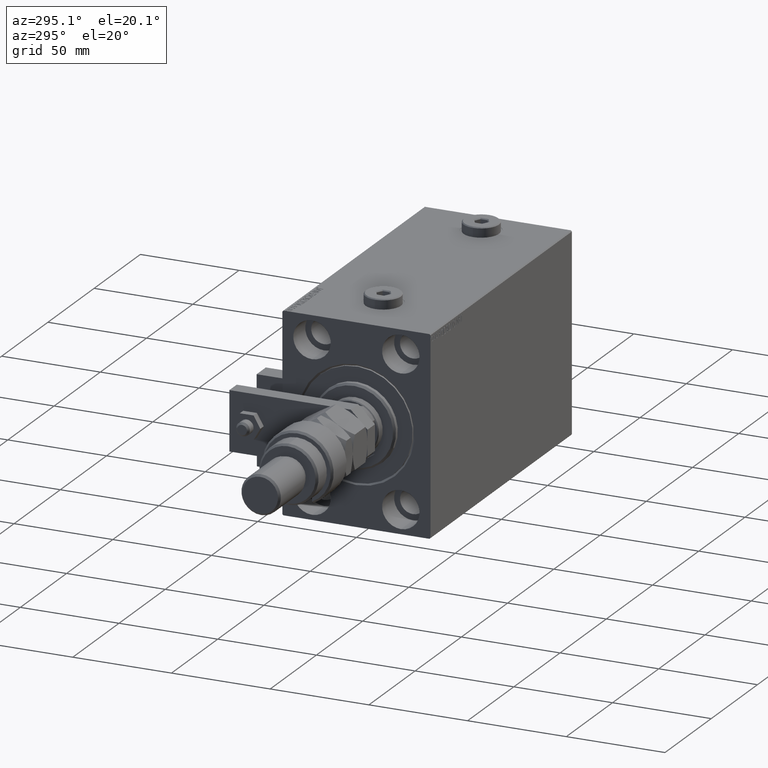
[diagram: clean part render]
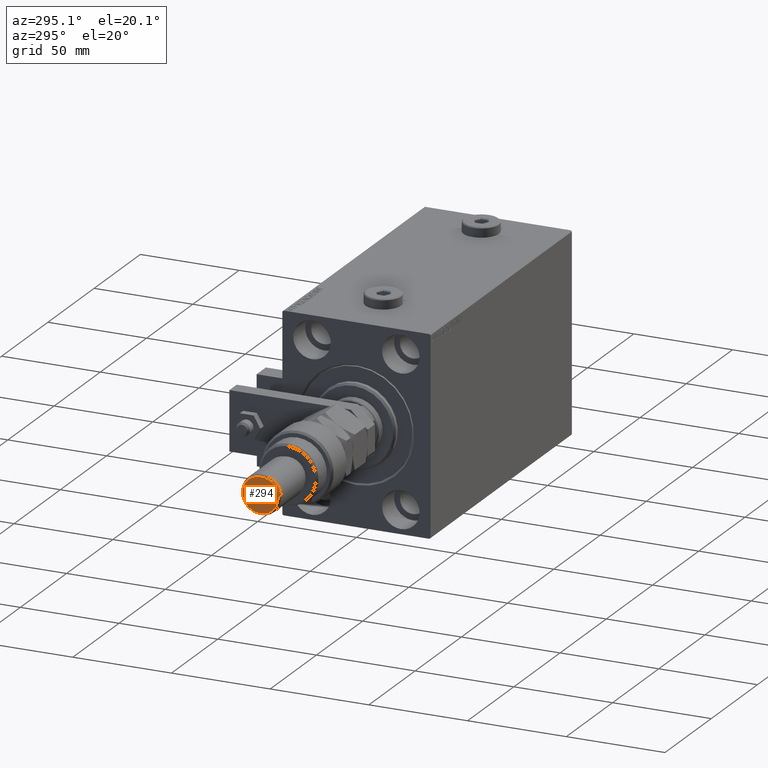
[diagram: same view with one face highlighted and labeled with its STEP entity id]
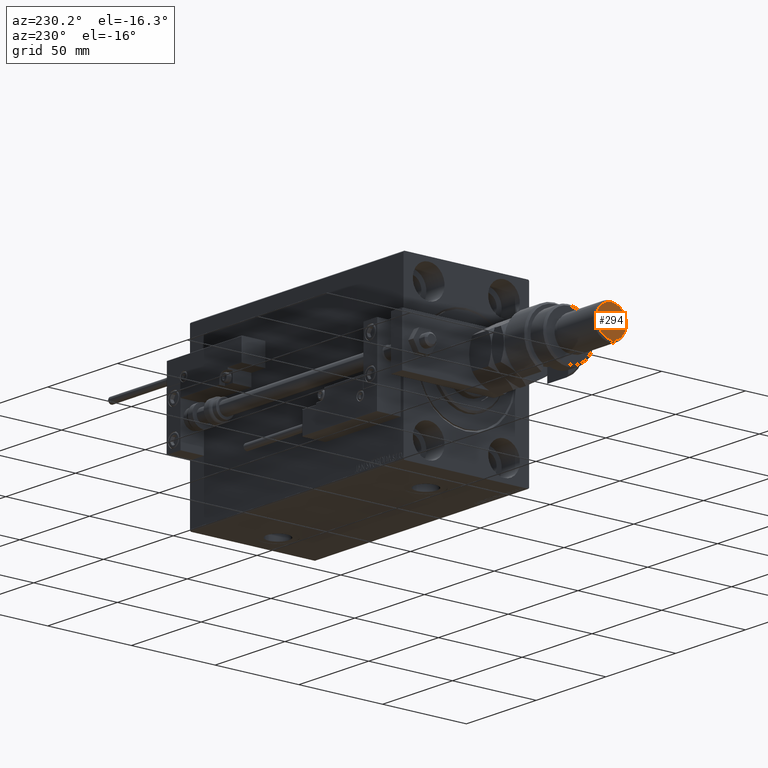
[diagram: same view with one face highlighted and labeled with its STEP entity id]
A machine part, auxiliary view. The second image highlights one B-rep face of the part: STEP entity #294.
A second angle (auxiliary view) of the same face is appended — the face is thin or edge-on in the first view.
In plain terms, the highlighted planar face has unit normal (-1, 0, 0).
Its self-contained STEP definition (entity closure, byte-faithful):
#294 = ADVANCED_FACE ( 'NONE', ( #24070 ), #16616, .T. ) ;
#3103 = DIRECTION ( 'NONE',  ( 0.000000000000000000, 0.000000000000000000, 1.000000000000000000 ) ) ;
#5497 = AXIS2_PLACEMENT_3D ( 'NONE', #18684, #14264, #31078 ) ;
#5583 = CARTESIAN_POINT ( 'NONE',  ( 0.000000000000000000, 0.000000000000000000, 56.00000000000000711 ) ) ;
#8763 = ORIENTED_EDGE ( 'NONE', *, *, #41614, .T. ) ;
#9445 = DIRECTION ( 'NONE',  ( 1.000000000000000000, 0.000000000000000000, 0.000000000000000000 ) ) ;
#14264 = DIRECTION ( 'NONE',  ( 0.000000000000000000, 0.000000000000000000, 1.000000000000000000 ) ) ;
#15333 = VERTEX_POINT ( 'NONE', #41086 ) ;
#16616 = PLANE ( 'NONE',  #19016 ) ;
#16945 = EDGE_CURVE ( 'NONE', #15333, #38847, #30140, .T. ) ;
#18665 = CIRCLE ( 'NONE', #24873, 8.999999999999987566 ) ;
#18684 = CARTESIAN_POINT ( 'NONE',  ( 0.000000000000000000, 0.000000000000000000, 56.00000000000000711 ) ) ;
#19016 = AXIS2_PLACEMENT_3D ( 'NONE', #40848, #3103, #45833 ) ;
#19640 = ORIENTED_EDGE ( 'NONE', *, *, #16945, .T. ) ;
#22408 = DIRECTION ( 'NONE',  ( 0.000000000000000000, 0.000000000000000000, 1.000000000000000000 ) ) ;
#24070 = FACE_OUTER_BOUND ( 'NONE', #25813, .T. ) ;
#24873 = AXIS2_PLACEMENT_3D ( 'NONE', #5583, #22408, #9445 ) ;
#25813 = EDGE_LOOP ( 'NONE', ( #8763, #19640 ) ) ;
#30140 = CIRCLE ( 'NONE', #5497, 8.999999999999987566 ) ;
#31078 = DIRECTION ( 'NONE',  ( 1.000000000000000000, 0.000000000000000000, 0.000000000000000000 ) ) ;
#38847 = VERTEX_POINT ( 'NONE', #41479 ) ;
#40848 = CARTESIAN_POINT ( 'NONE',  ( 0.000000000000000000, 0.000000000000000000, 56.00000000000000711 ) ) ;
#41086 = CARTESIAN_POINT ( 'NONE',  ( 8.999999999999987566, 1.163414459189984894E-15, 56.00000000000000711 ) ) ;
#41479 = CARTESIAN_POINT ( 'NONE',  ( -8.999999999999987566, 0.000000000000000000, 56.00000000000000711 ) ) ;
#41614 = EDGE_CURVE ( 'NONE', #38847, #15333, #18665, .T. ) ;
#45833 = DIRECTION ( 'NONE',  ( 1.000000000000000000, 0.000000000000000000, -0.000000000000000000 ) ) ;